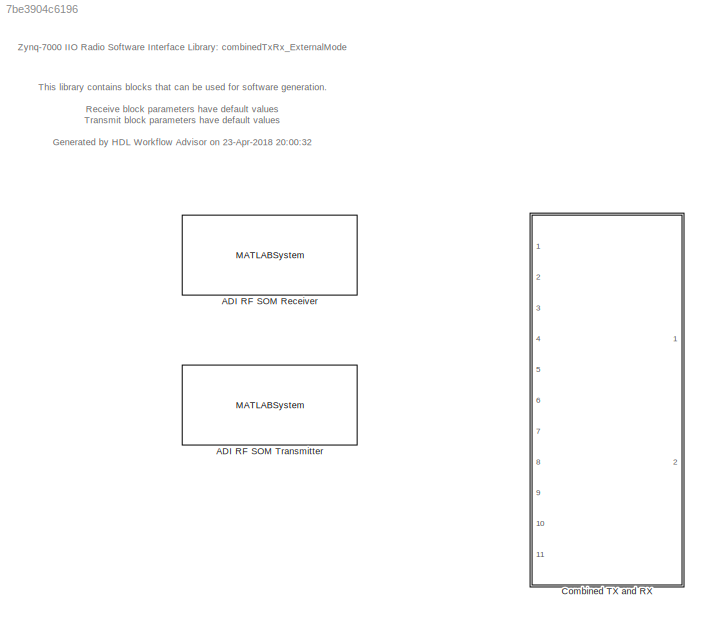
MODEL slx_7be3904c6196
KIND library
CONFIG AbsTol = auto
CONFIG EnableMultiTasking = off
CONFIG FixedStep = auto
CONFIG MaxStep = auto
CONFIG MinStep = auto
CONFIG RelTol = 1e-3
CONFIG SampleTimeConstraint = Unconstrained
CONFIG Solver = VariableStepAuto
CONFIG SolverName = VariableStepAuto
CONFIG StartTime = 0.0
CONFIG StopTime = 10.0
BLOCK [MATLABSystem] ADI RF SOM Receiver
  BISTLoopbackMode = Disabled
  BasebandSampleRate = 1e6
  CenterFrequency = 2.4e9
  CenterFrequencySource = Dialog
  ChannelMapping = 1
  ENSMPinControlMode = None
  EnableBasebandDCTracking = on
  EnableQuadratureTracking = on
  EnableRFDCTracking = on
  Gain = 10
  GainSource = AGC Slow Attack
  IPAddress = 192.168.3.2
  MaskDisplay = disp(['SDR' char(10) 'Receiver']);\nport_label('output',1,'data');\nport_label('output',2,'data valid');\nport_label('output',3,'overflow');
  MaskType = comm.SDRRxZynqRadioLibIIO
  OutputDataType = int16
  OverflowOutputPort = on
  Ports = [0, 3]
  SamplesPerFrame = 20000
  ShowAdvancedProperties = off
  System = comm.SDRRxZynqRadioLibIIO
  Timeout = 30
  UseCustomFilter = off
  filtCoefficientSize = 128
  filtCoefficients = round( fir1( 127, 0.75 )*2^15*10^1.2 )
  filtDecimInterpFactor = 4
  filtGain = -12
  filtPathRates = [ 737280000, 11520000, 3840000, 1920000, 960000, 240000 ]
  filtRFBandwidth = 18e6
  filterConfigStruct = struct()
  uri = ip:10.0.0.200
BLOCK [MATLABSystem] ADI RF SOM Transmitter
  BISTLoopbackMode = Disabled
  BasebandSampleRate = 1e6
  CenterFrequency = 2.4e9
  CenterFrequencySource = Dialog
  ChannelMapping = 1
  DDSTone1Freq = 5e3
  DDSTone1Scale = 0.5
  DDSTone2Freq = 10e3
  DDSTone2Scale = 0.25
  DataSourceSelect = Input Port
  ENSMPinControlMode = None
  Gain = -10
  GainSource = Dialog
  IPAddress = 192.168.3.2
  MaskDisplay = disp(['SDR' char(10) 'Transmitter']);\nport_label('input',1,'data');\nport_label('output',1,'underflow');
  MaskType = comm.SDRTxZynqRadioLibIIO
  Ports = [1, 1]
  ShowAdvancedProperties = off
  System = comm.SDRTxZynqRadioLibIIO
  Timeout = 30
  UnderflowOutputPort = on
  UseCustomFilter = off
  filtCoefficientSize = 128
  filtCoefficients = round( fir1( 127, 0.75 )*2^15*10^1.2 )
  filtDecimInterpFactor = 4
  filtGain = -12
  filtPathRates = [ 737280000, 11520000, 3840000, 1920000, 960000, 240000 ]
  filtRFBandwidth = 18e6
  filterConfigStruct = struct()
  uri = ip:10.0.0.200
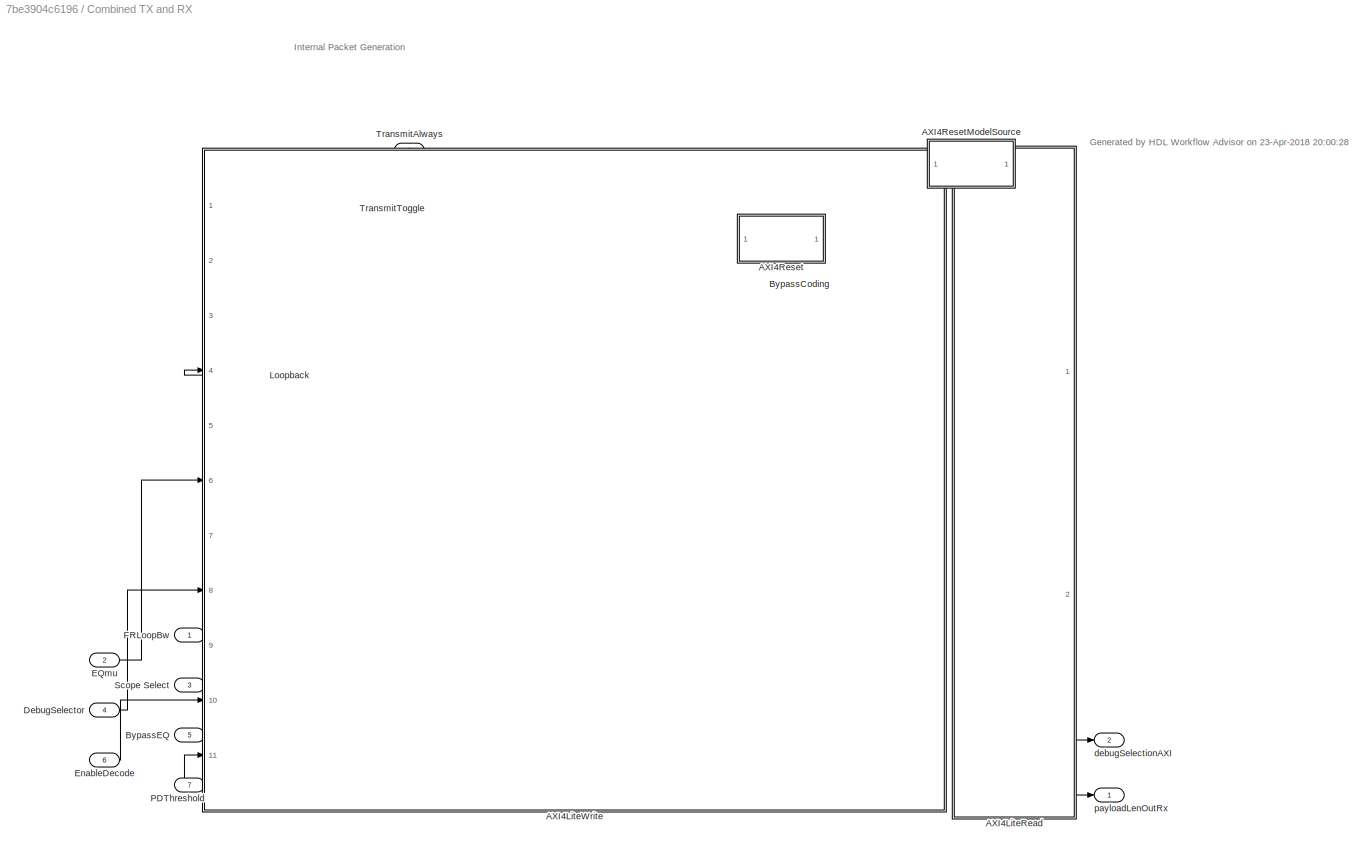
BLOCK [SubSystem] Combined TX and RX
  Ports = [11, 2]
  RequestExecContextInheritance = off
  TreatAsAtomicUnit = on
  Variant = off
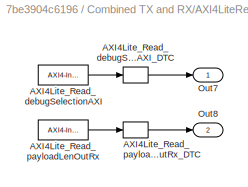
BLOCK [SubSystem] Combined TX and RX/AXI4LiteRead
  Ports = [0, 2]
  Priority = 10
  RequestExecContextInheritance = off
  Variant = off
BLOCK [Reference] Combined TX and RX/AXI4LiteRead/AXI4Lite_Read_debugSelectionAXI  REF=axiinterfacelib/AXI4-Interface Read
  Ports = [0, 1]
  Priority = 9
  SourceBlock = axiinterfacelib/AXI4-Interface Read
  SourceProductBaseCode = ECZYNQ7000
  SourceProductName = Embedded Coder Support Package for Xilinx Zynq Platform
  SourceType = AXI4-Interface Read
BLOCK [DataTypeConversion] Combined TX and RX/AXI4LiteRead/AXI4Lite_Read_debugSelectionAXI_DTC
  ConvertRealWorld = Stored Integer (SI)
  OutDataTypeStr = fixdt('uint32')
  RndMeth = Floor
  SaturateOnIntegerOverflow = off
BLOCK [Reference] Combined TX and RX/AXI4LiteRead/AXI4Lite_Read_payloadLenOutRx  REF=axiinterfacelib/AXI4-Interface Read
  Ports = [0, 1]
  Priority = 8
  SourceBlock = axiinterfacelib/AXI4-Interface Read
  SourceProductBaseCode = ECZYNQ7000
  SourceProductName = Embedded Coder Support Package for Xilinx Zynq Platform
  SourceType = AXI4-Interface Read
BLOCK [DataTypeConversion] Combined TX and RX/AXI4LiteRead/AXI4Lite_Read_payloadLenOutRx_DTC
  ConvertRealWorld = Stored Integer (SI)
  OutDataTypeStr = fixdt('uint16')
  RndMeth = Floor
  SaturateOnIntegerOverflow = off
BLOCK [Outport] Combined TX and RX/AXI4LiteRead/Out7
  IconDisplay = Port number
BLOCK [Outport] Combined TX and RX/AXI4LiteRead/Out8
  IconDisplay = Port number
  Port = 2
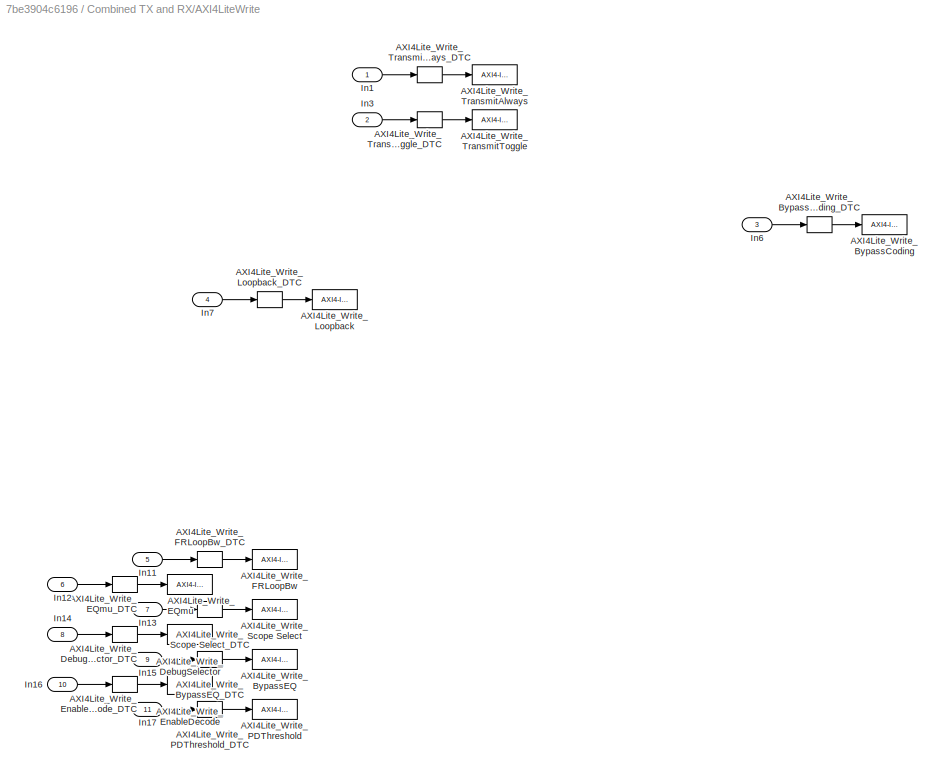
BLOCK [SubSystem] Combined TX and RX/AXI4LiteWrite
  Ports = [11]
  Priority = 1
  RequestExecContextInheritance = off
  Variant = off
BLOCK [Reference] Combined TX and RX/AXI4LiteWrite/AXI4Lite_Write_BypassCoding  REF=axiinterfacelib/AXI4-Interface Write
  Ports = [1]
  Priority = 17
  SourceBlock = axiinterfacelib/AXI4-Interface Write
  SourceProductBaseCode = ECZYNQ7000
  SourceProductName = Embedded Coder Support Package for Xilinx Zynq Platform
  SourceType = AXI4-Interface Write
BLOCK [DataTypeConversion] Combined TX and RX/AXI4LiteWrite/AXI4Lite_Write_BypassCoding_DTC
  ConvertRealWorld = Stored Integer (SI)
  OutDataTypeStr = uint32
  RndMeth = Floor
  SaturateOnIntegerOverflow = off
BLOCK [Reference] Combined TX and RX/AXI4LiteWrite/AXI4Lite_Write_BypassEQ  REF=axiinterfacelib/AXI4-Interface Write
  Ports = [1]
  Priority = 11
  SourceBlock = axiinterfacelib/AXI4-Interface Write
  SourceProductBaseCode = ECZYNQ7000
  SourceProductName = Embedded Coder Support Package for Xilinx Zynq Platform
  SourceType = AXI4-Interface Write
BLOCK [DataTypeConversion] Combined TX and RX/AXI4LiteWrite/AXI4Lite_Write_BypassEQ_DTC
  ConvertRealWorld = Stored Integer (SI)
  OutDataTypeStr = uint32
  RndMeth = Floor
  SaturateOnIntegerOverflow = off
BLOCK [Reference] Combined TX and RX/AXI4LiteWrite/AXI4Lite_Write_DebugSelector  REF=axiinterfacelib/AXI4-Interface Write
  Ports = [1]
  Priority = 10
  SourceBlock = axiinterfacelib/AXI4-Interface Write
  SourceProductBaseCode = ECZYNQ7000
  SourceProductName = Embedded Coder Support Package for Xilinx Zynq Platform
  SourceType = AXI4-Interface Write
BLOCK [DataTypeConversion] Combined TX and RX/AXI4LiteWrite/AXI4Lite_Write_DebugSelector_DTC
  ConvertRealWorld = Stored Integer (SI)
  OutDataTypeStr = uint32
  RndMeth = Floor
  SaturateOnIntegerOverflow = off
BLOCK [Reference] Combined TX and RX/AXI4LiteWrite/AXI4Lite_Write_EQmu  REF=axiinterfacelib/AXI4-Interface Write
  Ports = [1]
  Priority = 8
  SourceBlock = axiinterfacelib/AXI4-Interface Write
  SourceProductBaseCode = ECZYNQ7000
  SourceProductName = Embedded Coder Support Package for Xilinx Zynq Platform
  SourceType = AXI4-Interface Write
BLOCK [DataTypeConversion] Combined TX and RX/AXI4LiteWrite/AXI4Lite_Write_EQmu_DTC
  ConvertRealWorld = Stored Integer (SI)
  OutDataTypeStr = uint32
  RndMeth = Floor
  SaturateOnIntegerOverflow = off
BLOCK [Reference] Combined TX and RX/AXI4LiteWrite/AXI4Lite_Write_EnableDecode  REF=axiinterfacelib/AXI4-Interface Write
  Ports = [1]
  Priority = 12
  SourceBlock = axiinterfacelib/AXI4-Interface Write
  SourceProductBaseCode = ECZYNQ7000
  SourceProductName = Embedded Coder Support Package for Xilinx Zynq Platform
  SourceType = AXI4-Interface Write
BLOCK [DataTypeConversion] Combined TX and RX/AXI4LiteWrite/AXI4Lite_Write_EnableDecode_DTC
  ConvertRealWorld = Stored Integer (SI)
  OutDataTypeStr = uint32
  RndMeth = Floor
  SaturateOnIntegerOverflow = off
BLOCK [Reference] Combined TX and RX/AXI4LiteWrite/AXI4Lite_Write_FRLoopBw  REF=axiinterfacelib/AXI4-Interface Write
  Ports = [1]
  Priority = 7
  SourceBlock = axiinterfacelib/AXI4-Interface Write
  SourceProductBaseCode = ECZYNQ7000
  SourceProductName = Embedded Coder Support Package for Xilinx Zynq Platform
  SourceType = AXI4-Interface Write
BLOCK [DataTypeConversion] Combined TX and RX/AXI4LiteWrite/AXI4Lite_Write_FRLoopBw_DTC
  ConvertRealWorld = Stored Integer (SI)
  OutDataTypeStr = uint32
  RndMeth = Floor
  SaturateOnIntegerOverflow = off
BLOCK [Reference] Combined TX and RX/AXI4LiteWrite/AXI4Lite_Write_Loopback  REF=axiinterfacelib/AXI4-Interface Write
  Ports = [1]
  Priority = 16
  SourceBlock = axiinterfacelib/AXI4-Interface Write
  SourceProductBaseCode = ECZYNQ7000
  SourceProductName = Embedded Coder Support Package for Xilinx Zynq Platform
  SourceType = AXI4-Interface Write
BLOCK [DataTypeConversion] Combined TX and RX/AXI4LiteWrite/AXI4Lite_Write_Loopback_DTC
  ConvertRealWorld = Stored Integer (SI)
  OutDataTypeStr = uint32
  RndMeth = Floor
  SaturateOnIntegerOverflow = off
BLOCK [Reference] Combined TX and RX/AXI4LiteWrite/AXI4Lite_Write_PDThreshold  REF=axiinterfacelib/AXI4-Interface Write
  Ports = [1]
  Priority = 13
  SourceBlock = axiinterfacelib/AXI4-Interface Write
  SourceProductBaseCode = ECZYNQ7000
  SourceProductName = Embedded Coder Support Package for Xilinx Zynq Platform
  SourceType = AXI4-Interface Write
BLOCK [DataTypeConversion] Combined TX and RX/AXI4LiteWrite/AXI4Lite_Write_PDThreshold_DTC
  ConvertRealWorld = Stored Integer (SI)
  OutDataTypeStr = uint32
  RndMeth = Floor
  SaturateOnIntegerOverflow = off
BLOCK [Reference] Combined TX and RX/AXI4LiteWrite/AXI4Lite_Write_Scope Select  REF=axiinterfacelib/AXI4-Interface Write
  Ports = [1]
  Priority = 9
  SourceBlock = axiinterfacelib/AXI4-Interface Write
  SourceProductBaseCode = ECZYNQ7000
  SourceProductName = Embedded Coder Support Package for Xilinx Zynq Platform
  SourceType = AXI4-Interface Write
BLOCK [DataTypeConversion] Combined TX and RX/AXI4LiteWrite/AXI4Lite_Write_Scope Select_DTC
  ConvertRealWorld = Stored Integer (SI)
  OutDataTypeStr = uint32
  RndMeth = Floor
  SaturateOnIntegerOverflow = off
BLOCK [Reference] Combined TX and RX/AXI4LiteWrite/AXI4Lite_Write_TransmitAlways  REF=axiinterfacelib/AXI4-Interface Write
  Ports = [1]
  Priority = 15
  SourceBlock = axiinterfacelib/AXI4-Interface Write
  SourceProductBaseCode = ECZYNQ7000
  SourceProductName = Embedded Coder Support Package for Xilinx Zynq Platform
  SourceType = AXI4-Interface Write
BLOCK [DataTypeConversion] Combined TX and RX/AXI4LiteWrite/AXI4Lite_Write_TransmitAlways_DTC
  ConvertRealWorld = Stored Integer (SI)
  OutDataTypeStr = uint32
  RndMeth = Floor
  SaturateOnIntegerOverflow = off
BLOCK [Reference] Combined TX and RX/AXI4LiteWrite/AXI4Lite_Write_TransmitToggle  REF=axiinterfacelib/AXI4-Interface Write
  Ports = [1]
  Priority = 14
  SourceBlock = axiinterfacelib/AXI4-Interface Write
  SourceProductBaseCode = ECZYNQ7000
  SourceProductName = Embedded Coder Support Package for Xilinx Zynq Platform
  SourceType = AXI4-Interface Write
BLOCK [DataTypeConversion] Combined TX and RX/AXI4LiteWrite/AXI4Lite_Write_TransmitToggle_DTC
  ConvertRealWorld = Stored Integer (SI)
  OutDataTypeStr = uint32
  RndMeth = Floor
  SaturateOnIntegerOverflow = off
BLOCK [Inport] Combined TX and RX/AXI4LiteWrite/In1
  IconDisplay = Port number
BLOCK [Inport] Combined TX and RX/AXI4LiteWrite/In11
  IconDisplay = Port number
  Port = 5
BLOCK [Inport] Combined TX and RX/AXI4LiteWrite/In12
  IconDisplay = Port number
  Port = 6
BLOCK [Inport] Combined TX and RX/AXI4LiteWrite/In13
  IconDisplay = Port number
  Port = 7
BLOCK [Inport] Combined TX and RX/AXI4LiteWrite/In14
  IconDisplay = Port number
  Port = 8
BLOCK [Inport] Combined TX and RX/AXI4LiteWrite/In15
  IconDisplay = Port number
  Port = 9
BLOCK [Inport] Combined TX and RX/AXI4LiteWrite/In16
  IconDisplay = Port number
  Port = 10
BLOCK [Inport] Combined TX and RX/AXI4LiteWrite/In17
  IconDisplay = Port number
  Port = 11
BLOCK [Inport] Combined TX and RX/AXI4LiteWrite/In3
  IconDisplay = Port number
  Port = 2
BLOCK [Inport] Combined TX and RX/AXI4LiteWrite/In6
  IconDisplay = Port number
  Port = 3
BLOCK [Inport] Combined TX and RX/AXI4LiteWrite/In7
  IconDisplay = Port number
  Port = 4
BLOCK [SubSystem] Combined TX and RX/AXI4Reset
  CopyFcn = cccopyfcn(gcb)
  OpenFcn = ccopenfcn('System Start Function')
  Ports = []
  RequestExecContextInheritance = off
  Variant = off
BLOCK [SubSystem] Combined TX and RX/AXI4ResetModelSource
  CopyFcn = cccopyfcn(gcb)
  OpenFcn = ccopenfcn('Model Source')
  Ports = []
  RequestExecContextInheritance = off
  Variant = off
BLOCK [Inport] Combined TX and RX/BypassCoding
  IconDisplay = Port number
  Port = 11
BLOCK [Inport] Combined TX and RX/BypassEQ
  IconDisplay = Port number
  Port = 5
BLOCK [Inport] Combined TX and RX/DebugSelector
  IconDisplay = Port number
  Port = 4
BLOCK [Inport] Combined TX and RX/EQmu
  IconDisplay = Port number
  Port = 2
BLOCK [Inport] Combined TX and RX/EnableDecode
  IconDisplay = Port number
  Port = 6
BLOCK [Inport] Combined TX and RX/FRLoopBw
  IconDisplay = Port number
BLOCK [Inport] Combined TX and RX/Loopback
  IconDisplay = Port number
  Port = 10
BLOCK [Inport] Combined TX and RX/PDThreshold
  IconDisplay = Port number
  Port = 7
BLOCK [Inport] Combined TX and RX/Scope Select
  IconDisplay = Port number
  Port = 3
BLOCK [Inport] Combined TX and RX/TransmitAlways
  IconDisplay = Port number
  Port = 9
BLOCK [Inport] Combined TX and RX/TransmitToggle
  IconDisplay = Port number
  Port = 8
BLOCK [Outport] Combined TX and RX/debugSelectionAXI
  IconDisplay = Port number
  Port = 2
BLOCK [Outport] Combined TX and RX/payloadLenOutRx
  IconDisplay = Port number
ANNOTATION (root): This library contains blocks that can be used for software generation. Receive block parameters have default values Transmit block parameters have default values Generated by HDL Workflow Advisor on 23-Apr-2018 20:00:32
ANNOTATION (root): Zynq-7000 IIO Radio Software Interface Library: combinedTxRx_ExternalMode
ANNOTATION Combined TX and RX: Generated by HDL Workflow Advisor on 23-Apr-2018 20:00:28
ANNOTATION Combined TX and RX: Internal Packet Generation
LINE Combined TX and RX/AXI4LiteRead/AXI4Lite_Read_debugSelectionAXI:1 -> Combined TX and RX/AXI4LiteRead/AXI4Lite_Read_debugSelectionAXI_DTC:1
LINE Combined TX and RX/AXI4LiteRead/AXI4Lite_Read_debugSelectionAXI_DTC:1 -> Combined TX and RX/AXI4LiteRead/Out7:1
LINE Combined TX and RX/AXI4LiteRead/AXI4Lite_Read_payloadLenOutRx:1 -> Combined TX and RX/AXI4LiteRead/AXI4Lite_Read_payloadLenOutRx_DTC:1
LINE Combined TX and RX/AXI4LiteRead/AXI4Lite_Read_payloadLenOutRx_DTC:1 -> Combined TX and RX/AXI4LiteRead/Out8:1
LINE Combined TX and RX/AXI4LiteRead:1 -> Combined TX and RX/debugSelectionAXI:1
LINE Combined TX and RX/AXI4LiteRead:2 -> Combined TX and RX/payloadLenOutRx:1
LINE Combined TX and RX/AXI4LiteWrite/AXI4Lite_Write_BypassCoding_DTC:1 -> Combined TX and RX/AXI4LiteWrite/AXI4Lite_Write_BypassCoding:1
LINE Combined TX and RX/AXI4LiteWrite/AXI4Lite_Write_BypassEQ_DTC:1 -> Combined TX and RX/AXI4LiteWrite/AXI4Lite_Write_BypassEQ:1
LINE Combined TX and RX/AXI4LiteWrite/AXI4Lite_Write_DebugSelector_DTC:1 -> Combined TX and RX/AXI4LiteWrite/AXI4Lite_Write_DebugSelector:1
LINE Combined TX and RX/AXI4LiteWrite/AXI4Lite_Write_EQmu_DTC:1 -> Combined TX and RX/AXI4LiteWrite/AXI4Lite_Write_EQmu:1
LINE Combined TX and RX/AXI4LiteWrite/AXI4Lite_Write_EnableDecode_DTC:1 -> Combined TX and RX/AXI4LiteWrite/AXI4Lite_Write_EnableDecode:1
LINE Combined TX and RX/AXI4LiteWrite/AXI4Lite_Write_FRLoopBw_DTC:1 -> Combined TX and RX/AXI4LiteWrite/AXI4Lite_Write_FRLoopBw:1
LINE Combined TX and RX/AXI4LiteWrite/AXI4Lite_Write_Loopback_DTC:1 -> Combined TX and RX/AXI4LiteWrite/AXI4Lite_Write_Loopback:1
LINE Combined TX and RX/AXI4LiteWrite/AXI4Lite_Write_PDThreshold_DTC:1 -> Combined TX and RX/AXI4LiteWrite/AXI4Lite_Write_PDThreshold:1
LINE Combined TX and RX/AXI4LiteWrite/AXI4Lite_Write_Scope Select_DTC:1 -> Combined TX and RX/AXI4LiteWrite/AXI4Lite_Write_Scope Select:1
LINE Combined TX and RX/AXI4LiteWrite/AXI4Lite_Write_TransmitAlways_DTC:1 -> Combined TX and RX/AXI4LiteWrite/AXI4Lite_Write_TransmitAlways:1
LINE Combined TX and RX/AXI4LiteWrite/AXI4Lite_Write_TransmitToggle_DTC:1 -> Combined TX and RX/AXI4LiteWrite/AXI4Lite_Write_TransmitToggle:1
LINE Combined TX and RX/AXI4LiteWrite/In11:1 -> Combined TX and RX/AXI4LiteWrite/AXI4Lite_Write_FRLoopBw_DTC:1
LINE Combined TX and RX/AXI4LiteWrite/In12:1 -> Combined TX and RX/AXI4LiteWrite/AXI4Lite_Write_EQmu_DTC:1
LINE Combined TX and RX/AXI4LiteWrite/In13:1 -> Combined TX and RX/AXI4LiteWrite/AXI4Lite_Write_Scope Select_DTC:1
LINE Combined TX and RX/AXI4LiteWrite/In14:1 -> Combined TX and RX/AXI4LiteWrite/AXI4Lite_Write_DebugSelector_DTC:1
LINE Combined TX and RX/AXI4LiteWrite/In15:1 -> Combined TX and RX/AXI4LiteWrite/AXI4Lite_Write_BypassEQ_DTC:1
LINE Combined TX and RX/AXI4LiteWrite/In16:1 -> Combined TX and RX/AXI4LiteWrite/AXI4Lite_Write_EnableDecode_DTC:1
LINE Combined TX and RX/AXI4LiteWrite/In17:1 -> Combined TX and RX/AXI4LiteWrite/AXI4Lite_Write_PDThreshold_DTC:1
LINE Combined TX and RX/AXI4LiteWrite/In1:1 -> Combined TX and RX/AXI4LiteWrite/AXI4Lite_Write_TransmitAlways_DTC:1
LINE Combined TX and RX/AXI4LiteWrite/In3:1 -> Combined TX and RX/AXI4LiteWrite/AXI4Lite_Write_TransmitToggle_DTC:1
LINE Combined TX and RX/AXI4LiteWrite/In6:1 -> Combined TX and RX/AXI4LiteWrite/AXI4Lite_Write_BypassCoding_DTC:1
LINE Combined TX and RX/AXI4LiteWrite/In7:1 -> Combined TX and RX/AXI4LiteWrite/AXI4Lite_Write_Loopback_DTC:1
LINE Combined TX and RX/BypassCoding:1 -> Combined TX and RX/AXI4LiteWrite:3
LINE Combined TX and RX/BypassEQ:1 -> Combined TX and RX/AXI4LiteWrite:9
LINE Combined TX and RX/DebugSelector:1 -> Combined TX and RX/AXI4LiteWrite:8
LINE Combined TX and RX/EQmu:1 -> Combined TX and RX/AXI4LiteWrite:6
LINE Combined TX and RX/EnableDecode:1 -> Combined TX and RX/AXI4LiteWrite:10
LINE Combined TX and RX/FRLoopBw:1 -> Combined TX and RX/AXI4LiteWrite:5
LINE Combined TX and RX/Loopback:1 -> Combined TX and RX/AXI4LiteWrite:4
LINE Combined TX and RX/PDThreshold:1 -> Combined TX and RX/AXI4LiteWrite:11
LINE Combined TX and RX/Scope Select:1 -> Combined TX and RX/AXI4LiteWrite:7
LINE Combined TX and RX/TransmitAlways:1 -> Combined TX and RX/AXI4LiteWrite:1
LINE Combined TX and RX/TransmitToggle:1 -> Combined TX and RX/AXI4LiteWrite:2
